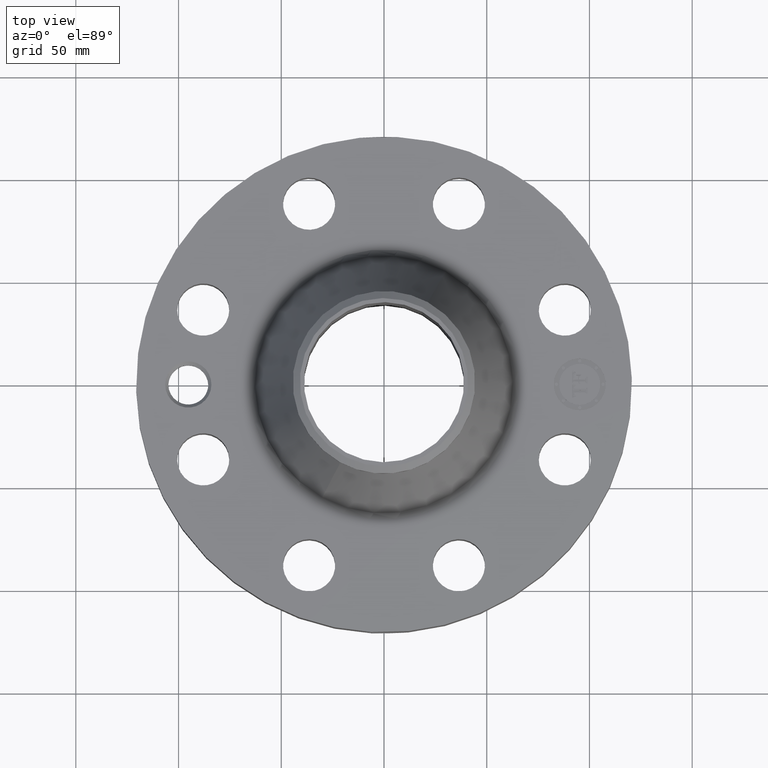
[diagram: clean part render]
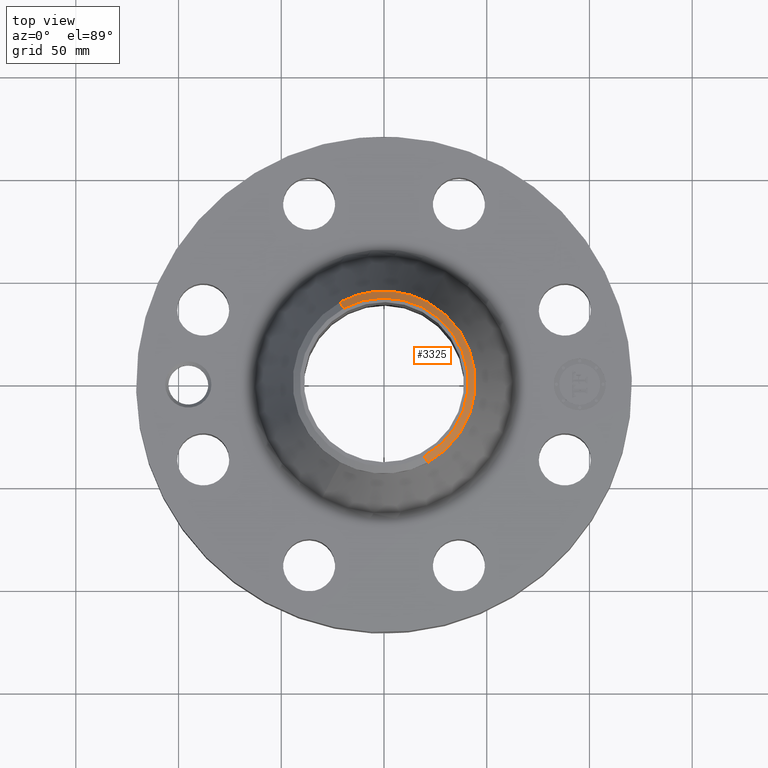
[diagram: same view with one face highlighted and labeled with its STEP entity id]
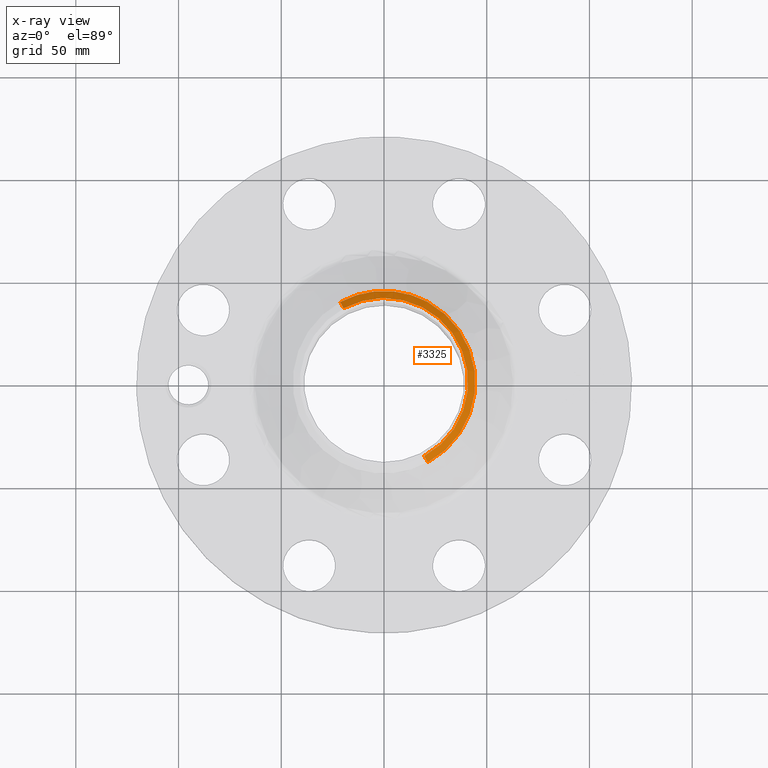
[diagram: x-ray of the same camera — body ghosted, the highlighted face saturated]
A machine part, top view. The second image highlights one B-rep face of the part: STEP entity #3325.
The next image is the same camera in x-ray: the body ghosted, the highlighted face saturated — about 0% of this face is hidden behind the body in this view.
In plain terms, the highlighted conical surface has half-angle 52.5 deg.
Its self-contained STEP definition (entity closure, byte-faithful):
#2412=AXIS2_PLACEMENT_3D('Circle Axis2P3D',#2410,#2411,$) ;
#3270=AXIS2_PLACEMENT_3D('Cone Axis2P3D',#3267,#3268,#3269) ;
#3308=AXIS2_PLACEMENT_3D('Circle Axis2P3D',#3306,#3307,$) ;
#3315=AXIS2_PLACEMENT_3D('Circle Axis2P3D',#3313,#3314,$) ;
#2410=CARTESIAN_POINT('Axis2P3D Location',(0.,0.,4.25000000002)) ;
#2414=CARTESIAN_POINT('Vertex',(0.773188818632,-1.41531263907,4.25000000002)) ;
#2416=CARTESIAN_POINT('Vertex',(-0.773188818632,1.41531263907,4.25000000002)) ;
#3267=CARTESIAN_POINT('Axis2P3D Location',(0.,0.,4.25000000002)) ;
#3272=CARTESIAN_POINT('Line Origine',(0.806091755596,-1.47554106119,4.19733840925)) ;
#3276=CARTESIAN_POINT('Vertex',(0.838994692561,-1.53576948331,4.14467681849)) ;
#3279=CARTESIAN_POINT('Line Origine',(-0.806091755596,1.47554106119,4.19733840925)) ;
#3283=CARTESIAN_POINT('Vertex',(-0.838994692561,1.53576948331,4.14467681849)) ;
#3306=CARTESIAN_POINT('Axis2P3D Location',(0.,0.,4.14467681849)) ;
#3310=CARTESIAN_POINT('Vertex',(0.838994692561,1.53576948331,4.14467681849)) ;
#3313=CARTESIAN_POINT('Axis2P3D Location',(0.,0.,4.14467681849)) ;
#2411=DIRECTION('Axis2P3D Direction',(0.,0.,-0.0393700787402)) ;
#3268=DIRECTION('Axis2P3D Direction',(-0.,-0.,-0.0393700787402)) ;
#3269=DIRECTION('Axis2P3D XDirection',(-0.0188750212049,0.0345504945626,0.)) ;
#3273=DIRECTION('Vector Direction',(0.014974561121,-0.02741075027,-0.023966985394)) ;
#3280=DIRECTION('Vector Direction',(-0.014974561121,0.02741075027,-0.023966985394)) ;
#3307=DIRECTION('Axis2P3D Direction',(0.,0.,-0.0393700787402)) ;
#3314=DIRECTION('Axis2P3D Direction',(0.,0.,-0.0393700787402)) ;
#3274=VECTOR('Line Direction',#3273,0.0393700787402) ;
#3281=VECTOR('Line Direction',#3280,0.0393700787402) ;
#3319=ORIENTED_EDGE('',*,*,#3285,.F.) ;
#3320=ORIENTED_EDGE('',*,*,#2418,.F.) ;
#3321=ORIENTED_EDGE('',*,*,#3278,.T.) ;
#3322=ORIENTED_EDGE('',*,*,#3312,.T.) ;
#3323=ORIENTED_EDGE('',*,*,#3317,.F.) ;
#3325=ADVANCED_FACE('PartBody',(#3324),#3271,.T.) ;
#2413=CIRCLE('generated circle',#2412,1.61274015749) ;
#3309=CIRCLE('generated circle',#3308,1.75000000001) ;
#3316=CIRCLE('generated circle',#3315,1.75000000001) ;
#3271=CONICAL_SURFACE('Cone',#3270,1.61274015749,0.916297857297) ;
#2418=EDGE_CURVE('',#2415,#2417,#2413,.F.) ;
#3278=EDGE_CURVE('',#2415,#3277,#3275,.T.) ;
#3285=EDGE_CURVE('',#2417,#3284,#3282,.T.) ;
#3312=EDGE_CURVE('',#3277,#3311,#3309,.F.) ;
#3317=EDGE_CURVE('',#3284,#3311,#3316,.T.) ;
#3318=EDGE_LOOP('',(#3319,#3320,#3321,#3322,#3323)) ;
#3324=FACE_OUTER_BOUND('',#3318,.T.) ;
#3275=LINE('Line',#3272,#3274) ;
#3282=LINE('Line',#3279,#3281) ;
#2415=VERTEX_POINT('',#2414) ;
#2417=VERTEX_POINT('',#2416) ;
#3277=VERTEX_POINT('',#3276) ;
#3284=VERTEX_POINT('',#3283) ;
#3311=VERTEX_POINT('',#3310) ;